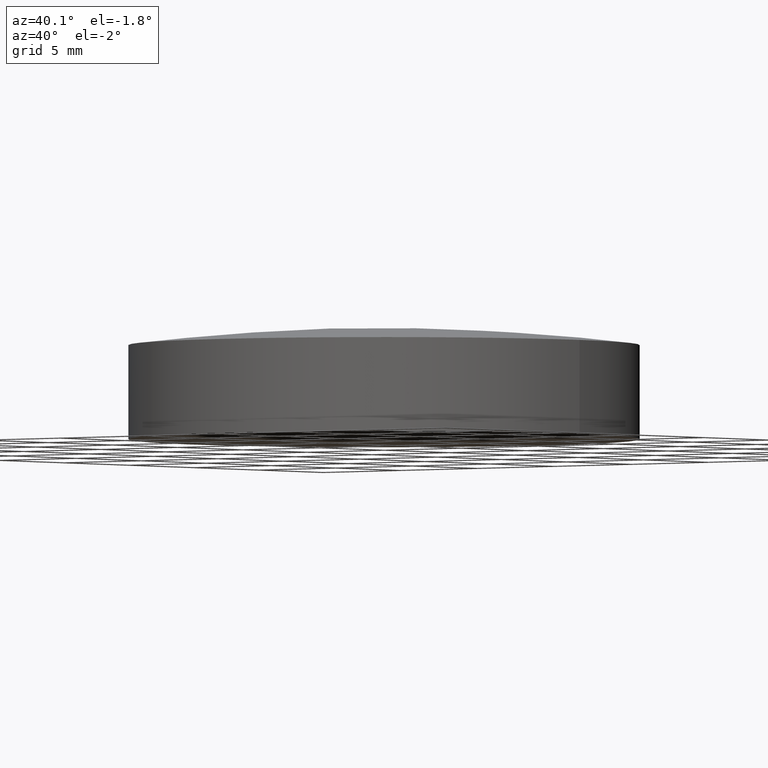
[diagram: clean part render]
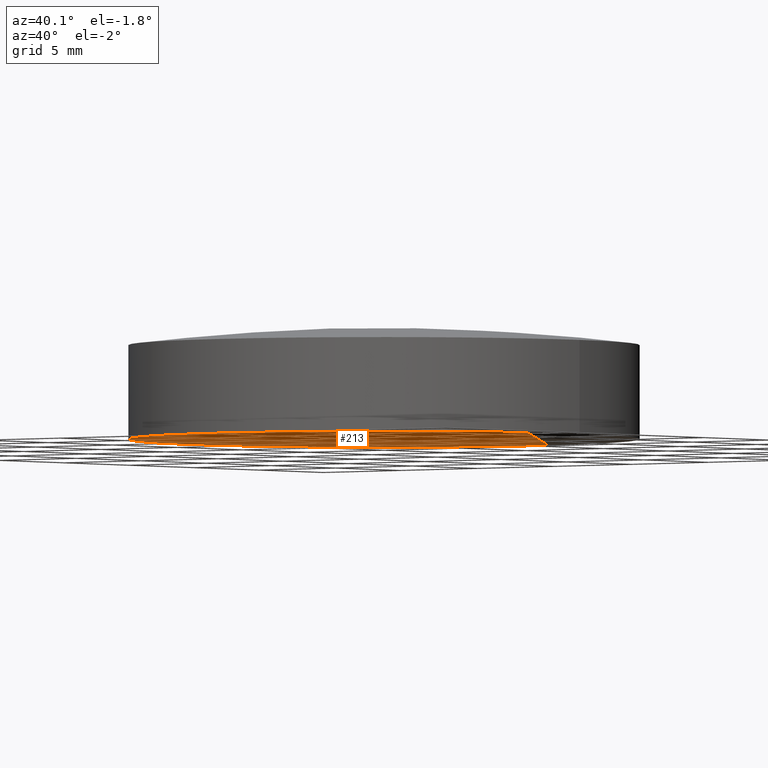
[diagram: same view with one face highlighted and labeled with its STEP entity id]
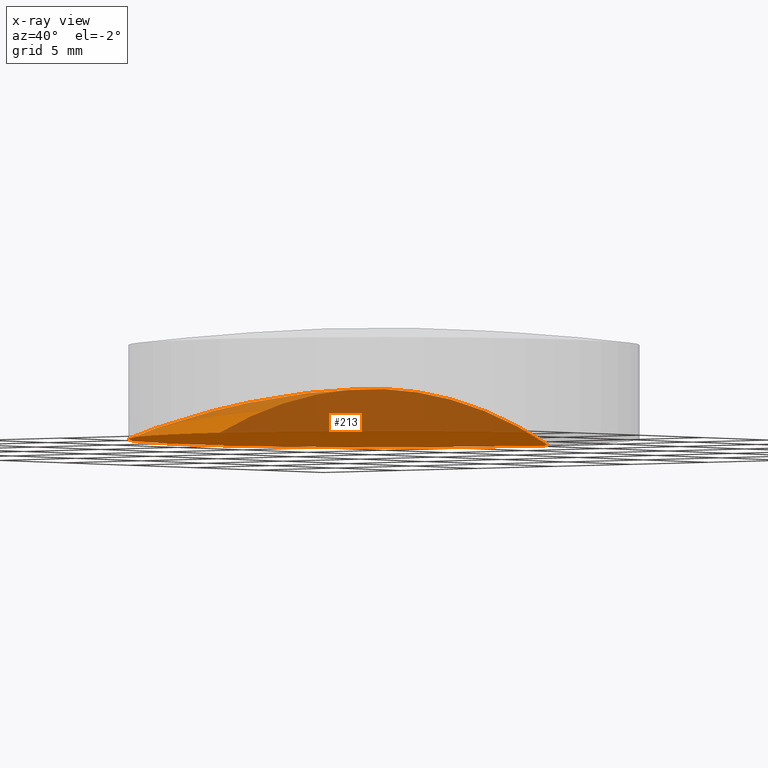
[diagram: x-ray of the same camera — body ghosted, the highlighted face saturated]
A machine part, auxiliary view. The second image highlights one B-rep face of the part: STEP entity #213.
The next image is the same camera in x-ray: the body ghosted, the highlighted face saturated — about 59% of this face is hidden behind the body in this view.
In plain terms, the highlighted spherical surface has radius 33.65 mm.
Its self-contained STEP definition (entity closure, byte-faithful):
#86 = DIRECTION ( 'NONE',  ( -1.000000000000000000, 1.224606353822377300E-016, 0.0000000000000000000 ) ) ;
#91 = CARTESIAN_POINT ( 'NONE',  ( 0.0000000000000000000, 0.0000000000000000000, -33.90569719235953300 ) ) ;
#92 = AXIS2_PLACEMENT_3D ( 'NONE', #91, #86, #129 ) ;
#93 = CIRCLE ( 'NONE', #137, 12.70000000000000100 ) ;
#107 = CARTESIAN_POINT ( 'NONE',  ( 0.0000000000000000000, 12.69999999999999900, -2.744302807640481000 ) ) ;
#128 = CARTESIAN_POINT ( 'NONE',  ( -1.555250069354419300E-015, -12.69999999999999900, -2.744302807640481000 ) ) ;
#129 = DIRECTION ( 'NONE',  ( -1.224606353822377300E-016, -1.000000000000000000, 0.0000000000000000000 ) ) ;
#133 = CARTESIAN_POINT ( 'NONE',  ( -12.70000000000000100, 1.555250069354419300E-015, -2.744302807640479200 ) ) ;
#134 = DIRECTION ( 'NONE',  ( 1.000000000000000000, 0.0000000000000000000, 0.0000000000000000000 ) ) ;
#135 = DIRECTION ( 'NONE',  ( -0.0000000000000000000, -0.0000000000000000000, 1.000000000000000000 ) ) ;
#136 = CARTESIAN_POINT ( 'NONE',  ( 0.0000000000000000000, 0.0000000000000000000, -2.744302807640479200 ) ) ;
#137 = AXIS2_PLACEMENT_3D ( 'NONE', #136, #135, #134 ) ;
#140 = CIRCLE ( 'NONE', #156, 33.64999999999999900 ) ;
#153 = DIRECTION ( 'NONE',  ( 0.0000000000000000000, 0.0000000000000000000, -1.000000000000000000 ) ) ;
#154 = DIRECTION ( 'NONE',  ( 1.000000000000000000, -0.0000000000000000000, 0.0000000000000000000 ) ) ;
#155 = CARTESIAN_POINT ( 'NONE',  ( 0.0000000000000000000, 0.0000000000000000000, -33.90569719235953300 ) ) ;
#156 = AXIS2_PLACEMENT_3D ( 'NONE', #155, #154, #153 ) ;
#159 = CARTESIAN_POINT ( 'NONE',  ( 0.0000000000000000000, 2.060400190306149500E-015, -0.2556971923595302600 ) ) ;
#167 = CIRCLE ( 'NONE', #92, 33.64999999999999900 ) ;
#210 = FACE_OUTER_BOUND ( 'NONE', #214, .T. ) ;
#211 = ORIENTED_EDGE ( 'NONE', *, *, #290, .F. ) ;
#213 = ADVANCED_FACE ( 'NONE', ( #210 ), #252, .F. ) ;
#214 = EDGE_LOOP ( 'NONE', ( #215, #219, #211, #217 ) ) ;
#215 = ORIENTED_EDGE ( 'NONE', *, *, #279, .F. ) ;
#217 = ORIENTED_EDGE ( 'NONE', *, *, #282, .T. ) ;
#219 = ORIENTED_EDGE ( 'NONE', *, *, #224, .F. ) ;
#224 = EDGE_CURVE ( 'NONE', #291, #276, #308, .T. ) ;
#246 = DIRECTION ( 'NONE',  ( 0.0000000000000000000, 1.000000000000000000, 0.0000000000000000000 ) ) ;
#247 = DIRECTION ( 'NONE',  ( -1.000000000000000000, 0.0000000000000000000, 0.0000000000000000000 ) ) ;
#248 = CARTESIAN_POINT ( 'NONE',  ( 0.0000000000000000000, 0.0000000000000000000, -33.90569719235953300 ) ) ;
#249 = AXIS2_PLACEMENT_3D ( 'NONE', #248, #247, #246 ) ;
#252 = SPHERICAL_SURFACE ( 'NONE', #249, 33.64999999999999900 ) ;
#276 = VERTEX_POINT ( 'NONE', #128 ) ;
#279 = EDGE_CURVE ( 'NONE', #276, #280, #167, .T. ) ;
#280 = VERTEX_POINT ( 'NONE', #159 ) ;
#282 = EDGE_CURVE ( 'NONE', #283, #280, #140, .T. ) ;
#283 = VERTEX_POINT ( 'NONE', #107 ) ;
#290 = EDGE_CURVE ( 'NONE', #283, #291, #93, .T. ) ;
#291 = VERTEX_POINT ( 'NONE', #133 ) ;
#304 = DIRECTION ( 'NONE',  ( 1.000000000000000000, 0.0000000000000000000, 0.0000000000000000000 ) ) ;
#305 = DIRECTION ( 'NONE',  ( -0.0000000000000000000, -0.0000000000000000000, 1.000000000000000000 ) ) ;
#306 = CARTESIAN_POINT ( 'NONE',  ( 0.0000000000000000000, 0.0000000000000000000, -2.744302807640479200 ) ) ;
#307 = AXIS2_PLACEMENT_3D ( 'NONE', #306, #305, #304 ) ;
#308 = CIRCLE ( 'NONE', #307, 12.70000000000000100 ) ;